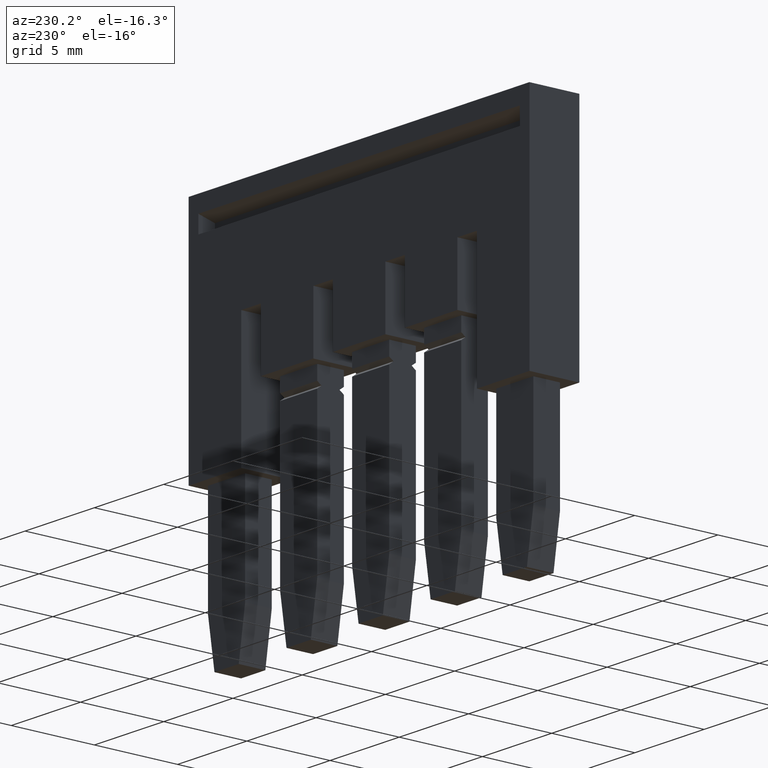
[diagram: clean part render]
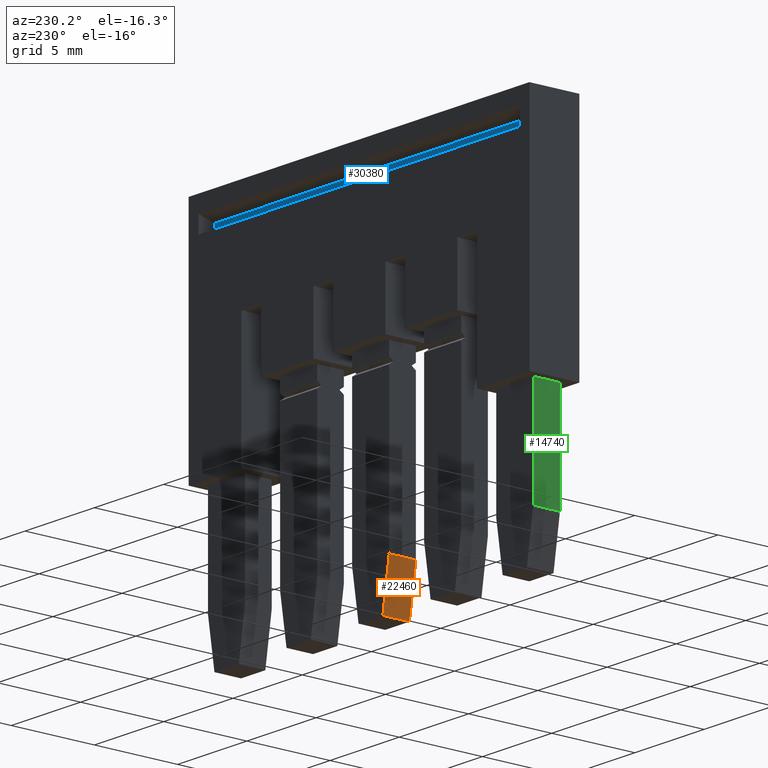
[diagram: same view with three faces highlighted in distinct colors, each labeled with its STEP entity id]
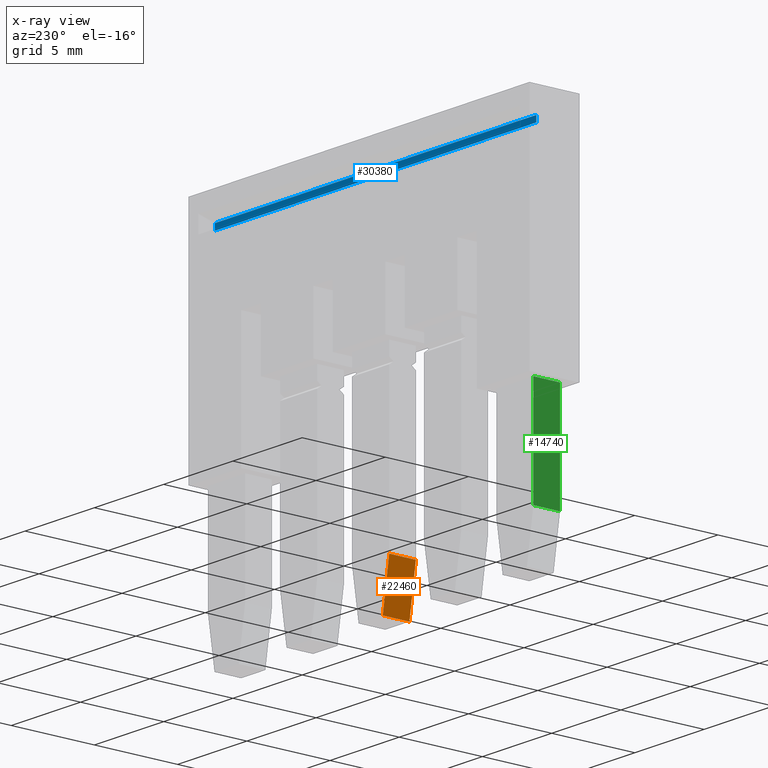
[diagram: x-ray of the same camera — body ghosted, the three highlighted faces saturated]
A machine part, auxiliary view with three faces highlighted in distinct colors.
The next image is the same camera in x-ray (body ghosted, the three faces saturated) — at least one of them is partly hidden behind the body in this view.
Their STEP definitions:

[orange] entity #22460 — the highlighted planar face has unit normal (0.9872, 0, 0.1594).
#20480=CARTESIAN_POINT('',(4.90716722169511,-28.9807420624753,
44.7200000009627));
#20490=VERTEX_POINT('',#20480);
#20520=CARTESIAN_POINT('',(4.90716722169511,-12.305124,42.0280274188091)
);
#20530=DIRECTION('',(0.,0.987219178105449,-0.159368423411924));
#20540=VECTOR('',#20530,1.);
#20550=LINE('',#20520,#20540);
#20560=CARTESIAN_POINT('',(4.90716722169511,-31.8500000000292,
45.1831890515924));
#20570=VERTEX_POINT('',#20560);
#20580=EDGE_CURVE('',#20570,#20490,#20550,.T.);
#21980=CARTESIAN_POINT('',(5.60716722168535,-31.8500000000292,
45.1831890515924));
#21990=DIRECTION('',(-1.,0.,0.));
#22000=VECTOR('',#21990,1.);
#22010=LINE('',#21980,#22000);
#22020=CARTESIAN_POINT('',(3.30716722168535,-31.8500000000292,
45.1831890515924));
#22030=VERTEX_POINT('',#22020);
#22040=EDGE_CURVE('',#20570,#22030,#22010,.T.);
#22230=CARTESIAN_POINT('',(4.90716722169511,-28.9807420624753,
44.7200000009627));
#22240=DIRECTION('',(0.,0.159368423411924,0.987219178105449));
#22250=DIRECTION('',(0.,0.987219178105449,-0.159368423411924));
#22260=AXIS2_PLACEMENT_3D('',#22230,#22240,#22250);
#22270=PLANE('',#22260);
#22280=ORIENTED_EDGE('',*,*,#20580,.F.);
#22290=CARTESIAN_POINT('',(5.60716722168535,-28.9807420624753,
44.7200000009627));
#22300=DIRECTION('',(-1.,0.,0.));
#22310=VECTOR('',#22300,1.);
#22320=LINE('',#22290,#22310);
#22330=CARTESIAN_POINT('',(3.30716722168535,-28.9807420624753,
44.7200000009627));
#22340=VERTEX_POINT('',#22330);
#22350=EDGE_CURVE('',#20490,#22340,#22320,.T.);
#22360=ORIENTED_EDGE('',*,*,#22350,.F.);
#22370=CARTESIAN_POINT('',(3.30716722168535,-12.305124,42.0280274188091)
);
#22380=DIRECTION('',(0.,-0.987219178105449,0.159368423411924));
#22390=VECTOR('',#22380,1.);
#22400=LINE('',#22370,#22390);
#22410=EDGE_CURVE('',#22340,#22030,#22400,.T.);
#22420=ORIENTED_EDGE('',*,*,#22410,.F.);
#22430=ORIENTED_EDGE('',*,*,#22040,.T.);
#22440=EDGE_LOOP('',(#22430,#22420,#22360,#22280));
#22450=FACE_OUTER_BOUND('',#22440,.T.);
#22460=ADVANCED_FACE('',(#22450),#22270,.F.);

[blue] entity #30380 — the highlighted planar face has unit normal (-0, -1, -0).
#29080=CARTESIAN_POINT('',(4.60716722168539,-12.305124,57.6599999999988)
);
#29090=DIRECTION('',(-1.09194685596314E-14,1.,0.));
#29100=VECTOR('',#29090,1.);
#29110=LINE('',#29080,#29100);
#29120=CARTESIAN_POINT('',(4.60716722168537,-10.4749999999992,
57.6599999999988));
#29130=VERTEX_POINT('',#29120);
#29140=CARTESIAN_POINT('',(4.60716722168536,-10.1089745962148,
57.6599999999988));
#29150=VERTEX_POINT('',#29140);
#29160=EDGE_CURVE('',#29130,#29150,#29110,.T.);
#29500=CARTESIAN_POINT('',(4.60716722168537,-10.4749999999992,
34.4599999999988));
#29510=VERTEX_POINT('',#29500);
#29560=CARTESIAN_POINT('',(4.60716722168537,-10.4749999999992,41.874984)
);
#29570=DIRECTION('',(0.,0.,1.));
#29580=VECTOR('',#29570,1.);
#29590=LINE('',#29560,#29580);
#29600=EDGE_CURVE('',#29510,#29130,#29590,.T.);
#29810=CARTESIAN_POINT('',(4.60716722168536,-10.1089745962148,
34.4599999999988));
#29820=VERTEX_POINT('',#29810);
#29870=CARTESIAN_POINT('',(4.60716722168536,-10.1089745962148,
34.4599999999988));
#29880=DIRECTION('',(1.09194685596314E-14,-1.,0.));
#29890=VECTOR('',#29880,1.);
#29900=LINE('',#29870,#29890);
#29910=EDGE_CURVE('',#29820,#29510,#29900,.T.);
#30090=CARTESIAN_POINT('',(4.60716722168536,-10.1089745962148,41.874984)
);
#30100=DIRECTION('',(0.,0.,1.));
#30110=VECTOR('',#30100,1.);
#30120=LINE('',#30090,#30110);
#30130=EDGE_CURVE('',#29820,#29150,#30120,.T.);
#30270=CARTESIAN_POINT('',(4.60716722168537,-10.4749999999992,
34.4599999999988));
#30280=DIRECTION('',(-1.,-1.09194685596314E-14,-0.));
#30290=DIRECTION('',(-1.09194685596314E-14,1.,0.));
#30300=AXIS2_PLACEMENT_3D('',#30270,#30280,#30290);
#30310=PLANE('',#30300);
#30320=ORIENTED_EDGE('',*,*,#29910,.F.);
#30330=ORIENTED_EDGE('',*,*,#29600,.F.);
#30340=ORIENTED_EDGE('',*,*,#29160,.F.);
#30350=ORIENTED_EDGE('',*,*,#30130,.T.);
#30360=EDGE_LOOP('',(#30350,#30340,#30330,#30320));
#30370=FACE_OUTER_BOUND('',#30360,.T.);
#30380=ADVANCED_FACE('',(#30370),#30310,.F.);

[green] entity #14740 — the highlighted planar face has unit normal (1, 0, 0).
#12150=CARTESIAN_POINT('',(3.30716722169511,-22.7750000000004,
34.3200000009627));
#12160=VERTEX_POINT('',#12150);
#12190=CARTESIAN_POINT('',(5.60716722168535,-22.7750000000004,
34.3200000009627));
#12200=DIRECTION('',(1.,0.,-2.15392493197044E-16));
#12210=VECTOR('',#12200,1.);
#12220=LINE('',#12190,#12210);
#12230=CARTESIAN_POINT('',(4.90716722169511,-22.7750000000004,
34.3200000009627));
#12240=VERTEX_POINT('',#12230);
#12250=EDGE_CURVE('',#12160,#12240,#12220,.T.);
#13820=CARTESIAN_POINT('',(4.90716722169511,-12.305124,34.3200000009627)
);
#13830=DIRECTION('',(-4.93038065763132E-32,1.,-2.3789721411555E-16));
#13840=VECTOR('',#13830,1.);
#13850=LINE('',#13820,#13840);
#13860=CARTESIAN_POINT('',(4.90716722169511,-28.9807420624754,
34.3200000009627));
#13870=VERTEX_POINT('',#13860);
#13880=EDGE_CURVE('',#13870,#12240,#13850,.T.);
#14160=CARTESIAN_POINT('',(3.30716722169511,-28.9807420624754,
34.3200000009627));
#14170=VERTEX_POINT('',#14160);
#14200=CARTESIAN_POINT('',(3.30716722169511,-12.305124,34.3200000009627)
);
#14210=DIRECTION('',(4.93038065763132E-32,1.,-2.3789721411555E-16));
#14220=VECTOR('',#14210,1.);
#14230=LINE('',#14200,#14220);
#14240=EDGE_CURVE('',#14170,#12160,#14230,.T.);
#14460=CARTESIAN_POINT('',(5.60716722168535,-28.9807420624754,
34.3200000009627));
#14470=DIRECTION('',(-1.,-5.12734571802744E-15,2.15392493197045E-16));
#14480=VECTOR('',#14470,1.);
#14490=LINE('',#14460,#14480);
#14500=EDGE_CURVE('',#13870,#14170,#14490,.T.);
#14630=CARTESIAN_POINT('',(3.17716482165418,-32.7498680022909,
34.3200000009627));
#14640=DIRECTION('',(2.15392493197044E-16,2.3789721411555E-16,1.));
#14650=DIRECTION('',(2.3789721411555E-16,1.,-2.3789721411555E-16));
#14660=AXIS2_PLACEMENT_3D('',#14630,#14640,#14650);
#14670=PLANE('',#14660);
#14680=ORIENTED_EDGE('',*,*,#14500,.T.);
#14690=ORIENTED_EDGE('',*,*,#13880,.F.);
#14700=ORIENTED_EDGE('',*,*,#12250,.T.);
#14710=ORIENTED_EDGE('',*,*,#14240,.T.);
#14720=EDGE_LOOP('',(#14710,#14700,#14690,#14680));
#14730=FACE_OUTER_BOUND('',#14720,.T.);
#14740=ADVANCED_FACE('',(#14730),#14670,.F.);